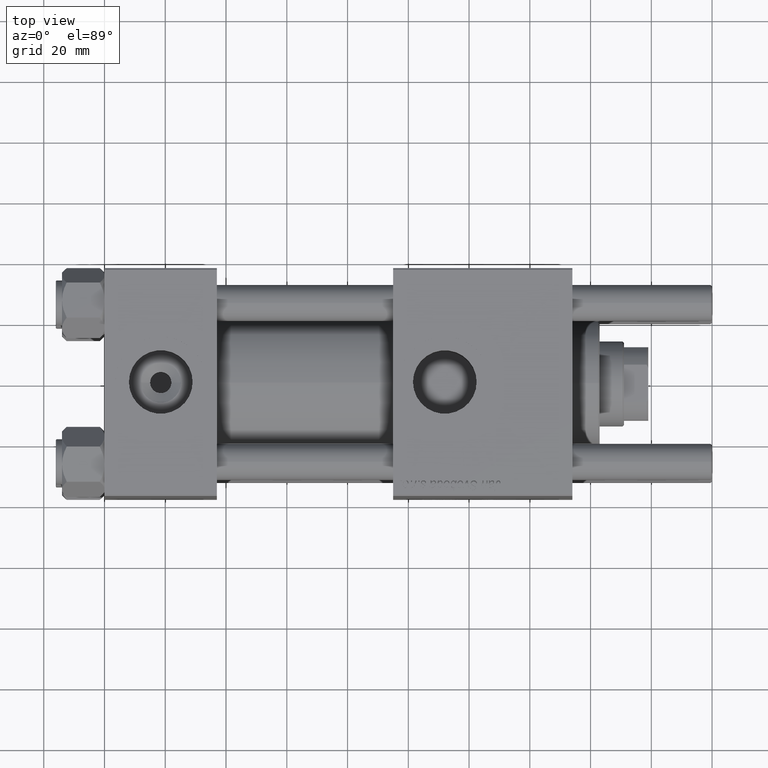
[diagram: clean part render]
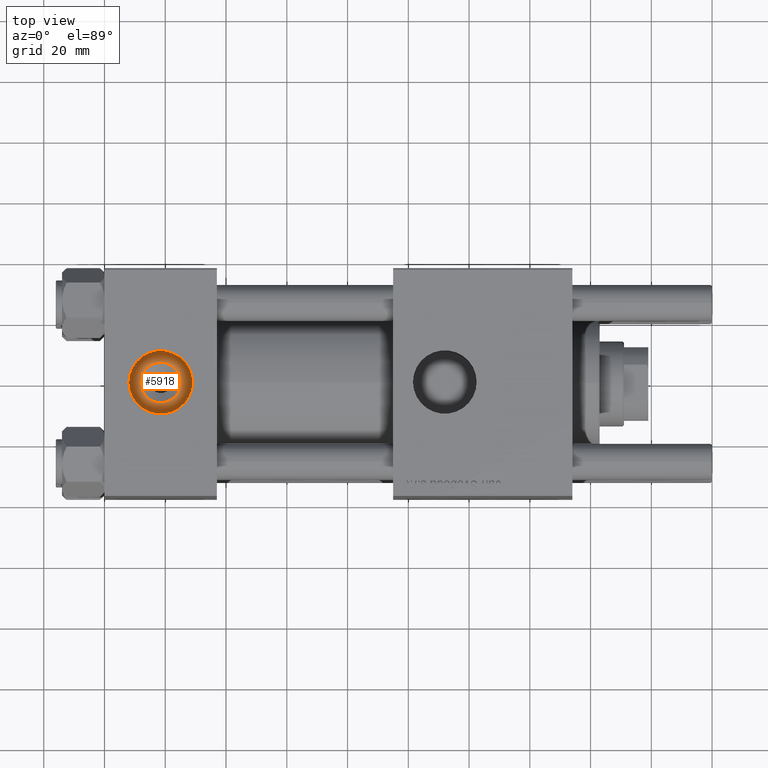
[diagram: same view with one face highlighted and labeled with its STEP entity id]
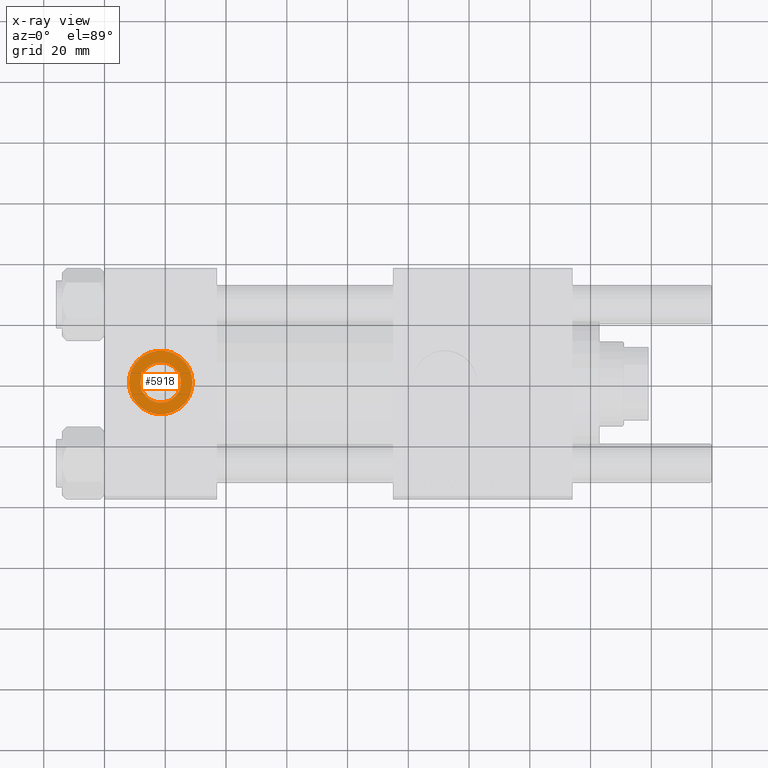
[diagram: x-ray of the same camera — body ghosted, the highlighted face saturated]
A machine part, top view. The second image highlights one B-rep face of the part: STEP entity #5918.
The next image is the same camera in x-ray: the body ghosted, the highlighted face saturated — about 0% of this face is hidden behind the body in this view.
In plain terms, the highlighted planar face has unit normal (0, 0, 1).
Its self-contained STEP definition (entity closure, byte-faithful):
#95 = DIRECTION ( 'NONE',  ( 1.000000000000000000, 0.000000000000000000, 0.000000000000000000 ) ) ;
#419 = CARTESIAN_POINT ( 'NONE',  ( 18.50000000000000000, -5.204170427930421283E-15, 26.69999999999999929 ) ) ;
#919 = CARTESIAN_POINT ( 'NONE',  ( 25.13999999999997925, -5.204170427930421283E-15, 26.69999999999999929 ) ) ;
#2646 = EDGE_CURVE ( 'NONE', #8590, #32411, #4106, .T. ) ;
#4106 = CIRCLE ( 'NONE', #42549, 10.48000000000000043 ) ;
#5180 = DIRECTION ( 'NONE',  ( 0.000000000000000000, 0.000000000000000000, 1.000000000000000000 ) ) ;
#5463 = DIRECTION ( 'NONE',  ( 1.000000000000000000, 0.000000000000000000, 0.000000000000000000 ) ) ;
#5918 = ADVANCED_FACE ( 'NONE', ( #30222, #39695 ), #56333, .T. ) ;
#7308 = AXIS2_PLACEMENT_3D ( 'NONE', #51677, #20424, #8368 ) ;
#8368 = DIRECTION ( 'NONE',  ( 1.000000000000000000, 0.000000000000000000, 0.000000000000000000 ) ) ;
#8590 = VERTEX_POINT ( 'NONE', #41487 ) ;
#8610 = AXIS2_PLACEMENT_3D ( 'NONE', #39300, #5180, #5463 ) ;
#10049 = CIRCLE ( 'NONE', #7308, 6.639999999999979252 ) ;
#18890 = AXIS2_PLACEMENT_3D ( 'NONE', #419, #22470, #26776 ) ;
#20370 = ORIENTED_EDGE ( 'NONE', *, *, #28289, .T. ) ;
#20424 = DIRECTION ( 'NONE',  ( -0.000000000000000000, -0.000000000000000000, -1.000000000000000000 ) ) ;
#21582 = CARTESIAN_POINT ( 'NONE',  ( 18.50000000000000000, -5.204170427930421283E-15, 26.69999999999999929 ) ) ;
#22470 = DIRECTION ( 'NONE',  ( 0.000000000000000000, 0.000000000000000000, 1.000000000000000000 ) ) ;
#23029 = VERTEX_POINT ( 'NONE', #919 ) ;
#26776 = DIRECTION ( 'NONE',  ( 1.000000000000000000, 0.000000000000000000, -0.000000000000000000 ) ) ;
#28289 = EDGE_CURVE ( 'NONE', #44367, #23029, #44999, .T. ) ;
#28482 = AXIS2_PLACEMENT_3D ( 'NONE', #37147, #54646, #32273 ) ;
#30222 = FACE_BOUND ( 'NONE', #33392, .T. ) ;
#32273 = DIRECTION ( 'NONE',  ( 1.000000000000000000, 0.000000000000000000, 0.000000000000000000 ) ) ;
#32411 = VERTEX_POINT ( 'NONE', #45639 ) ;
#33392 = EDGE_LOOP ( 'NONE', ( #49489, #20370 ) ) ;
#34768 = DIRECTION ( 'NONE',  ( 0.000000000000000000, 0.000000000000000000, 1.000000000000000000 ) ) ;
#37147 = CARTESIAN_POINT ( 'NONE',  ( 18.50000000000000000, -5.204170427930421283E-15, 26.69999999999999929 ) ) ;
#38909 = ORIENTED_EDGE ( 'NONE', *, *, #53956, .T. ) ;
#39300 = CARTESIAN_POINT ( 'NONE',  ( 18.50000000000000000, -5.204170427930421283E-15, 26.69999999999999929 ) ) ;
#39695 = FACE_OUTER_BOUND ( 'NONE', #44636, .T. ) ;
#41487 = CARTESIAN_POINT ( 'NONE',  ( 8.019999999999999574, -3.920740582423995006E-15, 26.69999999999999929 ) ) ;
#42291 = EDGE_CURVE ( 'NONE', #23029, #44367, #10049, .T. ) ;
#42549 = AXIS2_PLACEMENT_3D ( 'NONE', #21582, #34768, #95 ) ;
#43411 = CIRCLE ( 'NONE', #8610, 10.48000000000000043 ) ;
#44367 = VERTEX_POINT ( 'NONE', #49763 ) ;
#44636 = EDGE_LOOP ( 'NONE', ( #38909, #46316 ) ) ;
#44999 = CIRCLE ( 'NONE', #28482, 6.639999999999979252 ) ;
#45639 = CARTESIAN_POINT ( 'NONE',  ( 28.98000000000000043, -5.204170427930421283E-15, 26.69999999999999929 ) ) ;
#46316 = ORIENTED_EDGE ( 'NONE', *, *, #2646, .T. ) ;
#49489 = ORIENTED_EDGE ( 'NONE', *, *, #42291, .T. ) ;
#49763 = CARTESIAN_POINT ( 'NONE',  ( 11.86000000000001897, -4.391004953296581540E-15, 26.69999999999999929 ) ) ;
#51677 = CARTESIAN_POINT ( 'NONE',  ( 18.50000000000000000, -5.204170427930421283E-15, 26.69999999999999929 ) ) ;
#53956 = EDGE_CURVE ( 'NONE', #32411, #8590, #43411, .T. ) ;
#54646 = DIRECTION ( 'NONE',  ( -0.000000000000000000, -0.000000000000000000, -1.000000000000000000 ) ) ;
#56333 = PLANE ( 'NONE',  #18890 ) ;